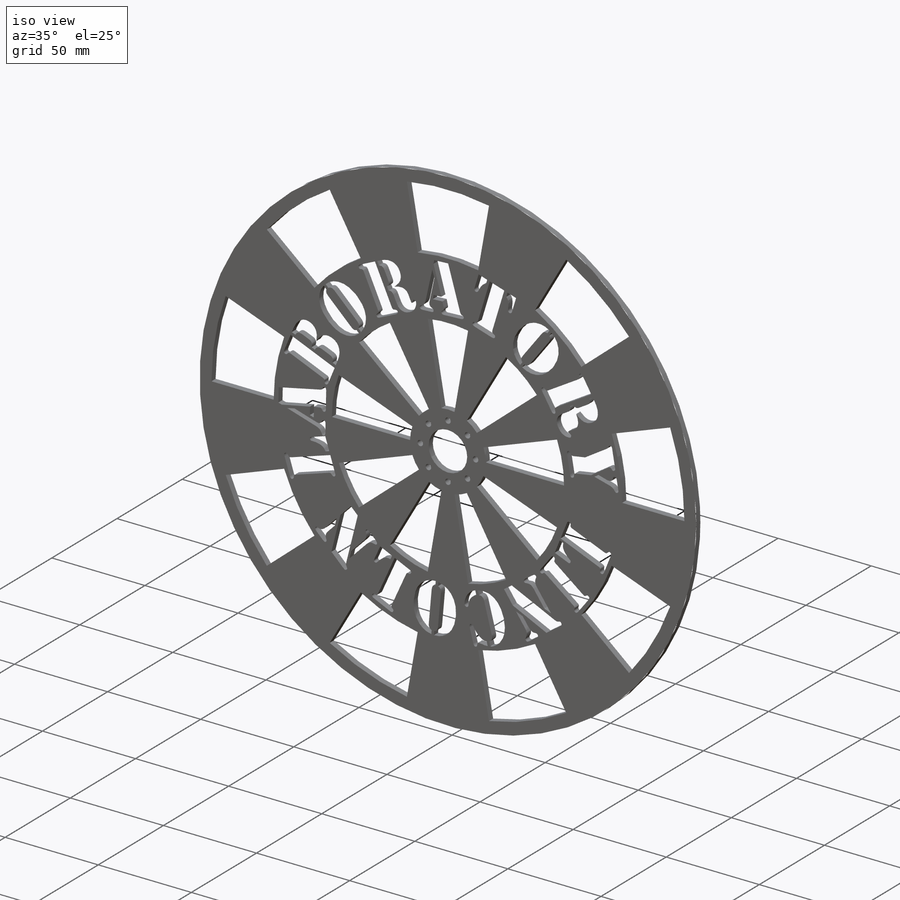
[diagram: iso view]
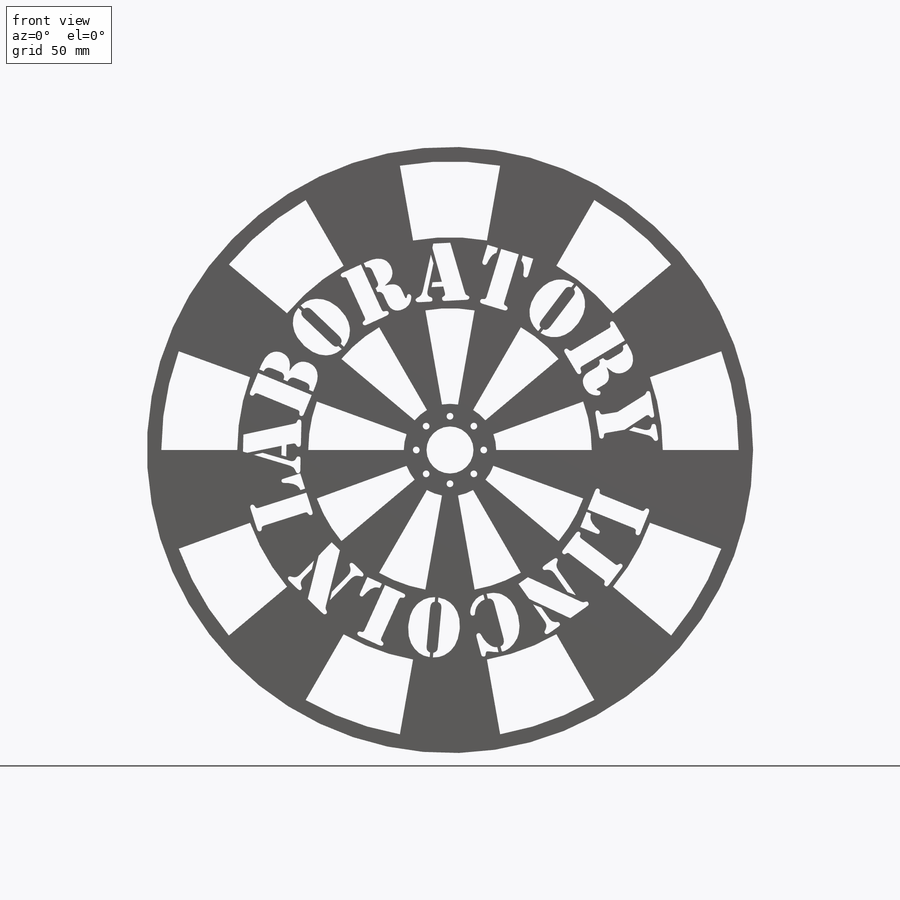
[diagram: front view]
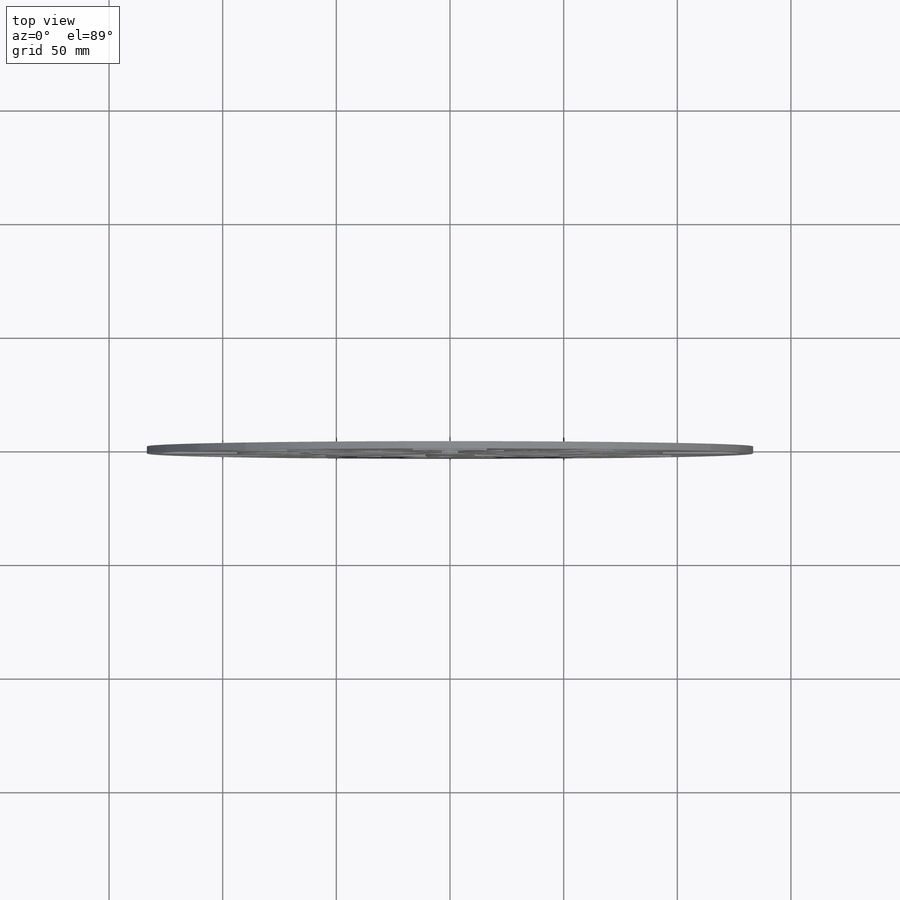
[diagram: top view]
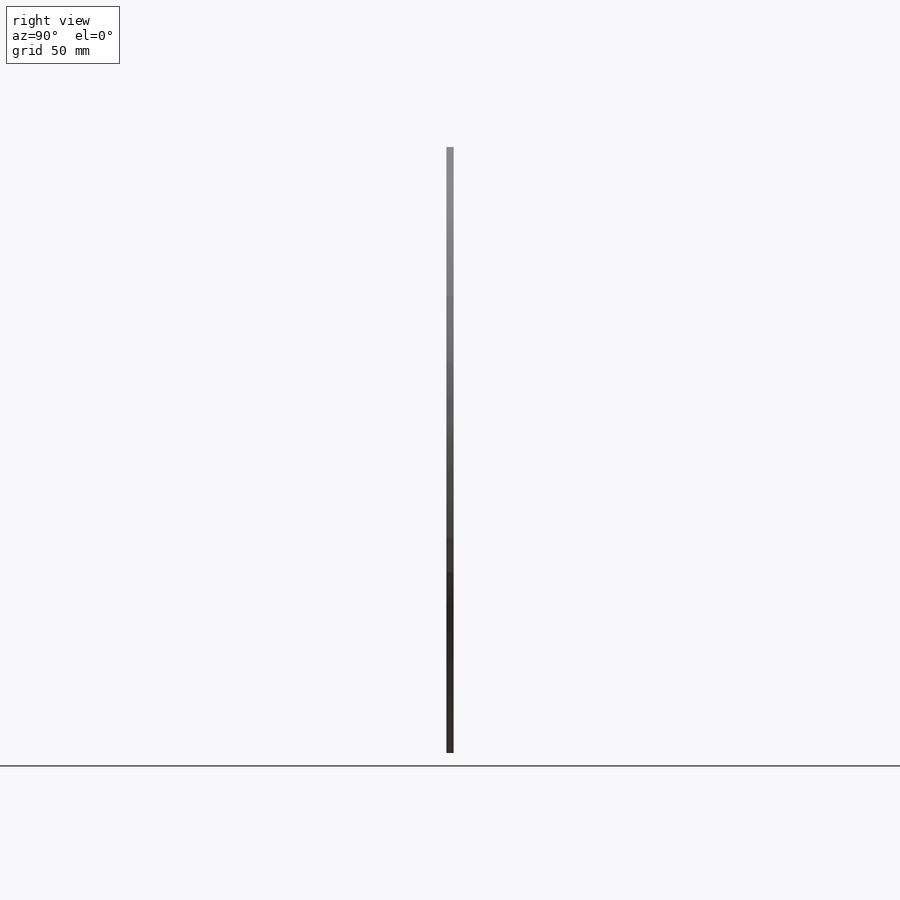
[diagram: right view]
SOLIDWORKS PART (.sldprt)
format: sldprt  version: not decoded by parser v0  size: 1,230,336 bytes
history: native  units: mm
features: sketch x5, cut_extrude x4, material x1, extrude x1, pattern_circular x1 (+13 scaffold rows collapsed)
feature tree (25):
  scaffold x13  (default folders/planes/origin — collapsed)
  material  "Material <not specified>"
  sketch  "Outer Diameter Sketch"  dims[D1=266.7mm]
  extrude  "Outer Diameter Boss"  Depth=3.175mm
  sketch  "Bore Clearance Sketch"  dims[D1=~20.686889mm]
  cut_extrude  "Bore Clearance Cut"  [1 undecoded]
  sketch  "Bolt Hole Sketch"  dims[c1.D1=2.9464mm c1.D4=~20.686889mm c1.D2=~14.843252mm c2.D4=~12.392753mm c2.D3=8.0]
  cut_extrude  "Bolt Hole Cut"  [1 undecoded]
  sketch  "Sketch1"
  sketch  "Relief Sketch"  dims[c1.D5=55.88mm c1.D1=~30.987911mm c1.D2=~252.164238mm c1.D3=20.32mm c1.D4=62.357mm c2.D5=~123.639967mm c2.D6=~114.910511mm c2.D2=3.175mm c2.D3=133.35mm c3.D3=22.5deg c3.D4=3.175mm c3.D1=~139.627906mm c4.D1=22.0deg c4.D2=6.35mm c4.D3=~14.843252mm c4.D4=~14.843252mm c5.D1=133.35mm c6.D1=10.0deg c6.D2=~124.445207mm c7.D2=10.0deg c7.D5=6.35mm c7.D6=33.401mm c7.D1=3.175mm]
  cut_extrude  "Cut-Extrude2"  [1 undecoded]
  cut_extrude  "Relief Cut"  [1 undecoded]
  pattern_circular  "CirPattern1"  Count=9 Angle=360deg
decode coverage: 6 of 11 modeling features carry decoded parameters
note: ~ marks probable driven/reference dimensions
note: 4 parameter values undecoded
summary: no parameter record found for 4 features
note: suppression state not decoded; provenance and decode notes live in map.json
